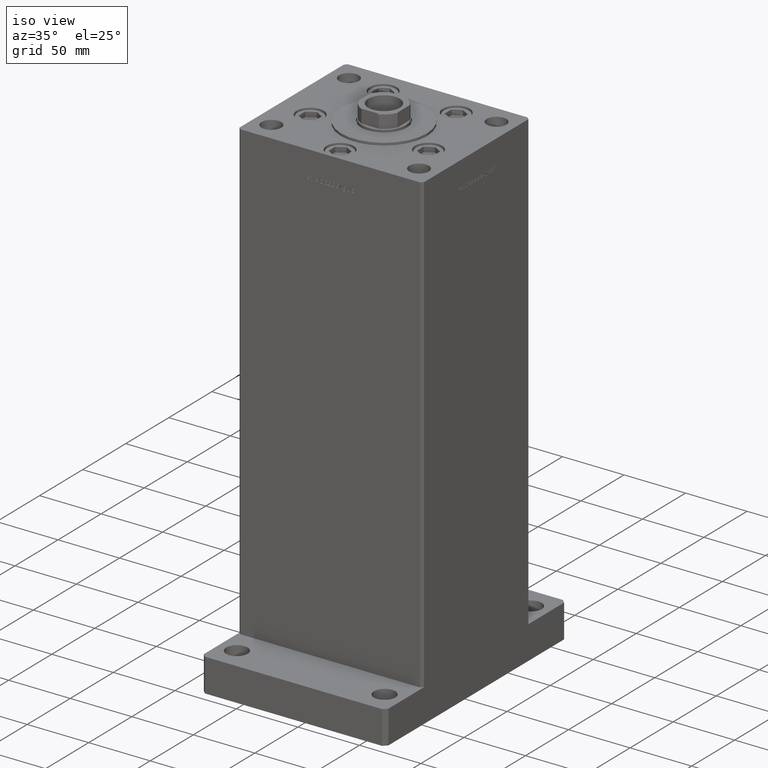
[diagram: clean part render]
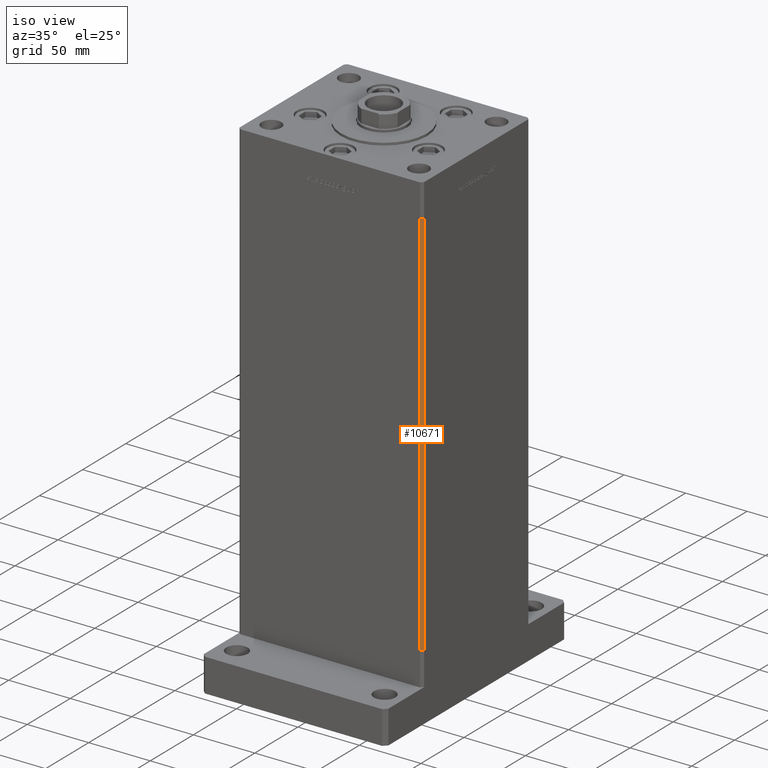
[diagram: same view with one face highlighted and labeled with its STEP entity id]
A machine part, iso view. The second image highlights one B-rep face of the part: STEP entity #10671.
In plain terms, the highlighted planar face has unit normal (0.7071, -0.7071, 0).
Its self-contained STEP definition (entity closure, byte-faithful):
#1466 = ORIENTED_EDGE ( 'NONE', *, *, #33513, .T. ) ;
#2008 = AXIS2_PLACEMENT_3D ( 'NONE', #47098, #26502, #22432 ) ;
#4281 = ORIENTED_EDGE ( 'NONE', *, *, #21141, .F. ) ;
#5881 = FACE_OUTER_BOUND ( 'NONE', #23887, .T. ) ;
#5885 = ORIENTED_EDGE ( 'NONE', *, *, #10999, .T. ) ;
#6598 = LINE ( 'NONE', #31805, #32752 ) ;
#10671 = ADVANCED_FACE ( 'NONE', ( #5881 ), #51184, .T. ) ;
#10942 = VERTEX_POINT ( 'NONE', #31290 ) ;
#10999 = EDGE_CURVE ( 'NONE', #18570, #20532, #36145, .T. ) ;
#15022 = CARTESIAN_POINT ( 'NONE',  ( 72.99999999999998579, -62.50000000000000000, 317.0000000000000000 ) ) ;
#17543 = CARTESIAN_POINT ( 'NONE',  ( 74.99999999999998579, -60.50000000000000000, 317.0000000000000000 ) ) ;
#18570 = VERTEX_POINT ( 'NONE', #25951 ) ;
#19435 = LINE ( 'NONE', #48726, #51960 ) ;
#20532 = VERTEX_POINT ( 'NONE', #43104 ) ;
#21141 = EDGE_CURVE ( 'NONE', #28901, #10942, #42179, .T. ) ;
#22432 = DIRECTION ( 'NONE',  ( 0.7071067811865474617, 0.7071067811865474617, 0.000000000000000000 ) ) ;
#23887 = EDGE_LOOP ( 'NONE', ( #30580, #4281, #1466, #5885 ) ) ;
#25951 = CARTESIAN_POINT ( 'NONE',  ( 72.99999999999998579, -62.50000000000000000, 317.0000000000000000 ) ) ;
#26502 = DIRECTION ( 'NONE',  ( 0.7071067811865475727, -0.7071067811865475727, 0.000000000000000000 ) ) ;
#28901 = VERTEX_POINT ( 'NONE', #31698 ) ;
#29476 = DIRECTION ( 'NONE',  ( -0.000000000000000000, -0.000000000000000000, -1.000000000000000000 ) ) ;
#29751 = VECTOR ( 'NONE', #43748, 1000.000000000000000 ) ;
#30580 = ORIENTED_EDGE ( 'NONE', *, *, #38457, .F. ) ;
#31290 = CARTESIAN_POINT ( 'NONE',  ( 74.99999999999998579, -60.50000000000000000, 0.000000000000000000 ) ) ;
#31698 = CARTESIAN_POINT ( 'NONE',  ( 74.99999999999998579, -60.50000000000000000, 317.0000000000000000 ) ) ;
#31805 = CARTESIAN_POINT ( 'NONE',  ( 74.99999999999998579, -60.50000000000000000, 317.0000000000000000 ) ) ;
#32713 = DIRECTION ( 'NONE',  ( -0.7071067811865474617, -0.7071067811865474617, 0.000000000000000000 ) ) ;
#32752 = VECTOR ( 'NONE', #40199, 1000.000000000000114 ) ;
#33513 = EDGE_CURVE ( 'NONE', #28901, #18570, #6598, .T. ) ;
#36145 = LINE ( 'NONE', #15022, #29751 ) ;
#38457 = EDGE_CURVE ( 'NONE', #10942, #20532, #19435, .T. ) ;
#40199 = DIRECTION ( 'NONE',  ( -0.7071067811865474617, -0.7071067811865474617, 0.000000000000000000 ) ) ;
#42179 = LINE ( 'NONE', #17543, #52466 ) ;
#43104 = CARTESIAN_POINT ( 'NONE',  ( 72.99999999999998579, -62.50000000000000000, 0.000000000000000000 ) ) ;
#43748 = DIRECTION ( 'NONE',  ( -0.000000000000000000, -0.000000000000000000, -1.000000000000000000 ) ) ;
#47098 = CARTESIAN_POINT ( 'NONE',  ( 74.99999999999998579, -60.50000000000000000, 317.0000000000000000 ) ) ;
#48726 = CARTESIAN_POINT ( 'NONE',  ( 74.99999999999998579, -60.50000000000000000, 0.000000000000000000 ) ) ;
#51184 = PLANE ( 'NONE',  #2008 ) ;
#51960 = VECTOR ( 'NONE', #32713, 1000.000000000000114 ) ;
#52466 = VECTOR ( 'NONE', #29476, 1000.000000000000000 ) ;